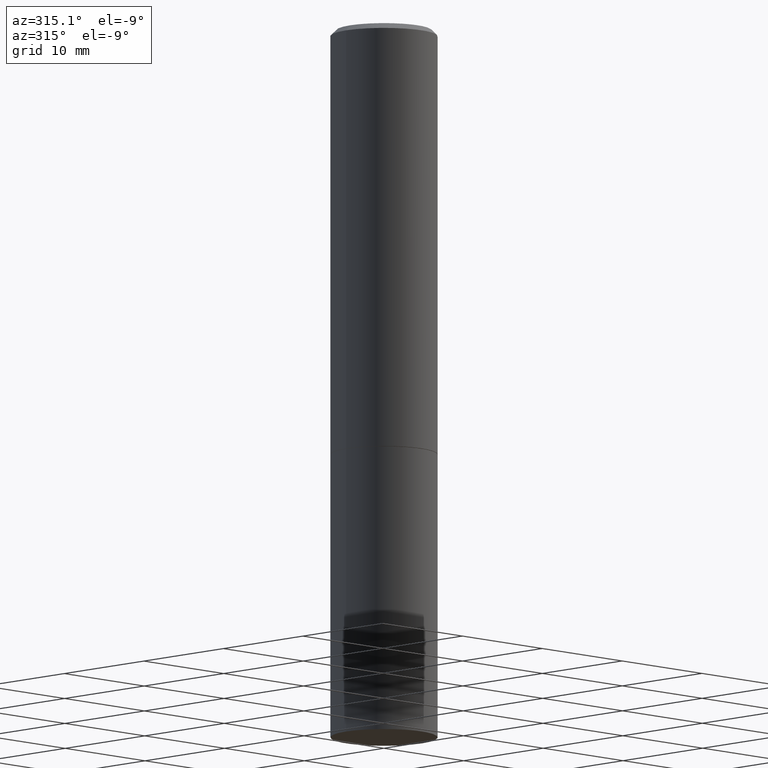
[diagram: clean part render]
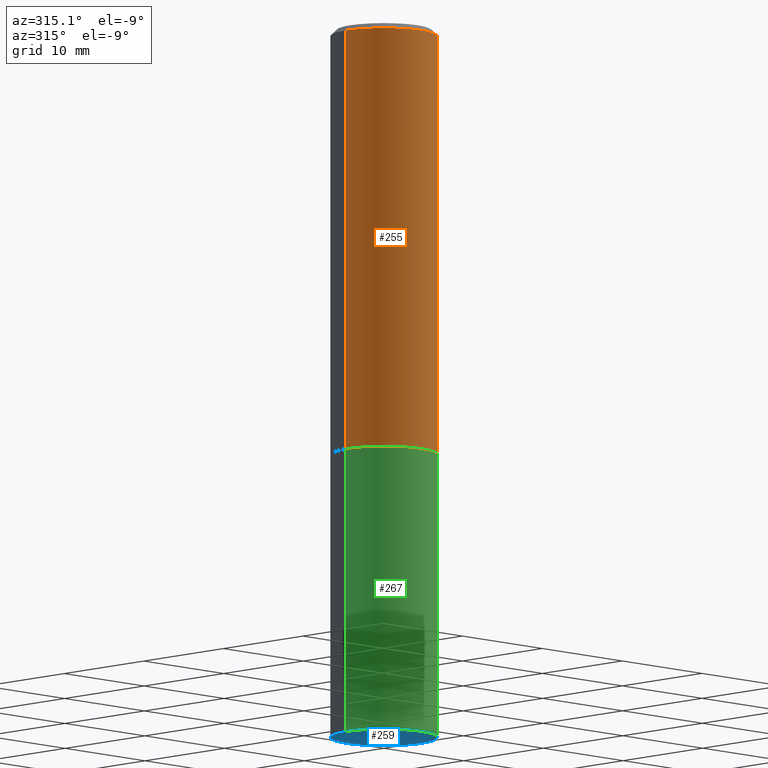
[diagram: same view with three faces highlighted in distinct colors, each labeled with its STEP entity id]
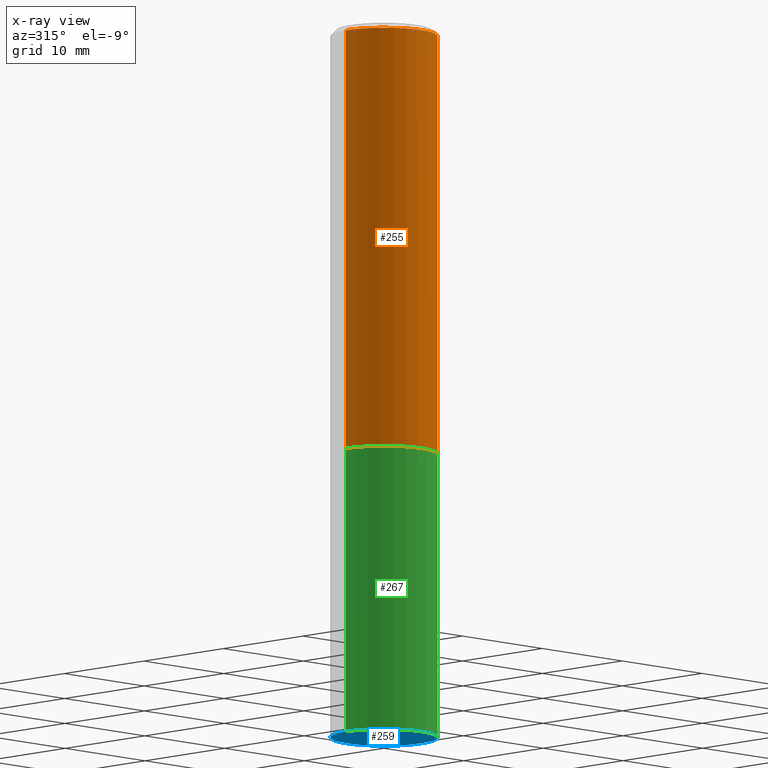
[diagram: x-ray of the same camera — body ghosted, the three highlighted faces saturated]
A machine part, auxiliary view with three faces highlighted in distinct colors.
The next image is the same camera in x-ray (body ghosted, the three faces saturated) — at least one of them is partly hidden behind the body in this view.
Their STEP definitions:

[orange] entity #255 — the highlighted cylindrical surface (partial cylindrical patch) has radius 4.7625 mm, axis along (-0, 0, 1).
#2 = ORIENTED_EDGE ( 'NONE', *, *, #295, .F. ) ;
#11 = CARTESIAN_POINT ( 'NONE',  ( -0.1874999999999999445, 1.332267629550187454E-15, -9.223003294227945188E-30 ) ) ;
#12 = ORIENTED_EDGE ( 'NONE', *, *, #79, .T. ) ;
#16 = CARTESIAN_POINT ( 'NONE',  ( -0.1874999999999998890, 1.239475875289310921E-15, -0.02000000000000004205 ) ) ;
#27 = DIRECTION ( 'NONE',  ( -2.445468806185136597E-29, 3.491481338843145583E-15, 1.000000000000000000 ) ) ;
#43 = AXIS2_PLACEMENT_3D ( 'NONE', #98, #207, #329 ) ;
#48 = DIRECTION ( 'NONE',  ( 1.000000000000000000, -6.982962677686266711E-15, 4.876176775795935793E-29 ) ) ;
#54 = CARTESIAN_POINT ( 'NONE',  ( 3.665757740471519853E-29, -5.233730526925875958E-15, -1.499000000000000110 ) ) ;
#59 = CIRCLE ( 'NONE', #43, 0.1874999999999998890 ) ;
#74 = FACE_OUTER_BOUND ( 'NONE', #363, .T. ) ;
#79 = EDGE_CURVE ( 'NONE', #270, #342, #310, .T. ) ;
#96 = DIRECTION ( 'NONE',  ( -2.445468806185136877E-29, 3.491481338843145188E-15, 1.000000000000000000 ) ) ;
#98 = CARTESIAN_POINT ( 'NONE',  ( 4.890937612370283668E-31, -6.982962677686305168E-17, -0.02000000000000004205 ) ) ;
#107 = VECTOR ( 'NONE', #96, 39.37007874015748143 ) ;
#131 = EDGE_CURVE ( 'NONE', #188, #342, #59, .T. ) ;
#143 = LINE ( 'NONE', #11, #107 ) ;
#150 = CARTESIAN_POINT ( 'NONE',  ( 0.1874999999999999445, -1.309305502066174614E-15, 9.142831454617376809E-30 ) ) ;
#163 = CARTESIAN_POINT ( 'NONE',  ( 0.1875000000000000278, -6.543036028992050967E-15, -1.499000000000000110 ) ) ;
#173 = CARTESIAN_POINT ( 'NONE',  ( 0.000000000000000000, 0.000000000000000000, 0.000000000000000000 ) ) ;
#181 = AXIS2_PLACEMENT_3D ( 'NONE', #54, #192, #341 ) ;
#186 = DIRECTION ( 'NONE',  ( -2.445468806185136877E-29, 3.491481338843145188E-15, 1.000000000000000000 ) ) ;
#188 = VERTEX_POINT ( 'NONE', #16 ) ;
#192 = DIRECTION ( 'NONE',  ( -2.445468806185136597E-29, 3.491481338843145583E-15, 1.000000000000000000 ) ) ;
#207 = DIRECTION ( 'NONE',  ( -2.445468806185136597E-29, 3.491481338843145583E-15, 1.000000000000000000 ) ) ;
#216 = ORIENTED_EDGE ( 'NONE', *, *, #131, .F. ) ;
#226 = ORIENTED_EDGE ( 'NONE', *, *, #328, .T. ) ;
#244 = VERTEX_POINT ( 'NONE', #245 ) ;
#245 = CARTESIAN_POINT ( 'NONE',  ( -0.1875000000000000278, -1.319512447301180005E-15, -1.499000000000000110 ) ) ;
#255 = ADVANCED_FACE ( 'NONE', ( #74 ), #286, .T. ) ;
#258 = CARTESIAN_POINT ( 'NONE',  ( 0.1874999999999998890, -1.356173001359024480E-15, -0.02000000000000004205 ) ) ;
#270 = VERTEX_POINT ( 'NONE', #163 ) ;
#272 = CIRCLE ( 'NONE', #181, 0.1875000000000000278 ) ;
#286 = CYLINDRICAL_SURFACE ( 'NONE', #360, 0.1874999999999999445 ) ;
#294 = VECTOR ( 'NONE', #186, 39.37007874015748143 ) ;
#295 = EDGE_CURVE ( 'NONE', #244, #188, #143, .T. ) ;
#310 = LINE ( 'NONE', #150, #294 ) ;
#328 = EDGE_CURVE ( 'NONE', #244, #270, #272, .T. ) ;
#329 = DIRECTION ( 'NONE',  ( 1.000000000000000000, -6.982962677686265922E-15, 0.000000000000000000 ) ) ;
#341 = DIRECTION ( 'NONE',  ( 1.000000000000000000, -6.982962677686266711E-15, 0.000000000000000000 ) ) ;
#342 = VERTEX_POINT ( 'NONE', #258 ) ;
#360 = AXIS2_PLACEMENT_3D ( 'NONE', #173, #27, #48 ) ;
#363 = EDGE_LOOP ( 'NONE', ( #2, #226, #12, #216 ) ) ;

[blue] entity #259 — the highlighted planar face has unit normal (0, -0, -1).
#1 = DIRECTION ( 'NONE',  ( -2.445468806185136597E-29, 3.491481338843145583E-15, 1.000000000000000000 ) ) ;
#3 = EDGE_LOOP ( 'NONE', ( #196, #287 ) ) ;
#15 = CARTESIAN_POINT ( 'NONE',  ( 6.113672015462842613E-29, -8.728703347107864943E-15, -2.500000000000000000 ) ) ;
#18 = DIRECTION ( 'NONE',  ( 2.438088387897960049E-29, -3.491481338843145188E-15, -1.000000000000000000 ) ) ;
#21 = PLANE ( 'NONE',  #320 ) ;
#57 = VERTEX_POINT ( 'NONE', #326 ) ;
#70 = DIRECTION ( 'NONE',  ( 1.000000000000000000, -6.982962677686266711E-15, 0.000000000000000000 ) ) ;
#72 = EDGE_CURVE ( 'NONE', #224, #57, #225, .T. ) ;
#85 = DIRECTION ( 'NONE',  ( 1.000000000000000000, -6.982962677686266711E-15, 0.000000000000000000 ) ) ;
#99 = CARTESIAN_POINT ( 'NONE',  ( 6.113672015462842613E-29, -8.728703347107864943E-15, -2.500000000000000000 ) ) ;
#123 = AXIS2_PLACEMENT_3D ( 'NONE', #99, #1, #85 ) ;
#142 = FACE_OUTER_BOUND ( 'NONE', #3, .T. ) ;
#164 = DIRECTION ( 'NONE',  ( -2.445468806185136597E-29, 3.491481338843145583E-15, 1.000000000000000000 ) ) ;
#196 = ORIENTED_EDGE ( 'NONE', *, *, #235, .F. ) ;
#224 = VERTEX_POINT ( 'NONE', #321 ) ;
#225 = CIRCLE ( 'NONE', #123, 0.1875000000000000278 ) ;
#235 = EDGE_CURVE ( 'NONE', #57, #224, #314, .T. ) ;
#238 = DIRECTION ( 'NONE',  ( -1.000000000000000000, 6.982962677686265922E-15, -4.876176775795935793E-29 ) ) ;
#253 = CARTESIAN_POINT ( 'NONE',  ( 1.309305502066236145E-15, 0.1874999999999912847, -2.500000000000000444 ) ) ;
#259 = ADVANCED_FACE ( 'NONE', ( #142 ), #21, .T. ) ;
#262 = AXIS2_PLACEMENT_3D ( 'NONE', #15, #164, #70 ) ;
#287 = ORIENTED_EDGE ( 'NONE', *, *, #72, .F. ) ;
#314 = CIRCLE ( 'NONE', #262, 0.1875000000000000278 ) ;
#320 = AXIS2_PLACEMENT_3D ( 'NONE', #253, #18, #238 ) ;
#321 = CARTESIAN_POINT ( 'NONE',  ( -0.1875000000000000278, -5.650695048136103317E-15, -2.500000000000000000 ) ) ;
#326 = CARTESIAN_POINT ( 'NONE',  ( 0.1875000000000000278, -1.003800884917403995E-14, -2.500000000000000000 ) ) ;

[green] entity #267 — the highlighted cylindrical surface (partial cylindrical patch) has radius 4.7625 mm, axis along (-0, 0, 1).
#1 = DIRECTION ( 'NONE',  ( -2.445468806185136597E-29, 3.491481338843145583E-15, 1.000000000000000000 ) ) ;
#20 = EDGE_CURVE ( 'NONE', #224, #53, #167, .T. ) ;
#30 = DIRECTION ( 'NONE',  ( -2.445468806185136877E-29, 3.491481338843145188E-15, 1.000000000000000000 ) ) ;
#40 = CARTESIAN_POINT ( 'NONE',  ( -0.1875000000000000278, -5.650695048136103317E-15, -1.500000000000000222 ) ) ;
#51 = CARTESIAN_POINT ( 'NONE',  ( 0.000000000000000000, 0.000000000000000000, 0.000000000000000000 ) ) ;
#53 = VERTEX_POINT ( 'NONE', #40 ) ;
#57 = VERTEX_POINT ( 'NONE', #326 ) ;
#67 = CARTESIAN_POINT ( 'NONE',  ( 3.668203209277704895E-29, -5.237222008264718177E-15, -1.500000000000000222 ) ) ;
#72 = EDGE_CURVE ( 'NONE', #224, #57, #225, .T. ) ;
#73 = EDGE_LOOP ( 'NONE', ( #194, #220, #232, #183 ) ) ;
#80 = FACE_OUTER_BOUND ( 'NONE', #73, .T. ) ;
#85 = DIRECTION ( 'NONE',  ( 1.000000000000000000, -6.982962677686266711E-15, 0.000000000000000000 ) ) ;
#99 = CARTESIAN_POINT ( 'NONE',  ( 6.113672015462842613E-29, -8.728703347107864943E-15, -2.500000000000000000 ) ) ;
#109 = DIRECTION ( 'NONE',  ( 1.000000000000000000, -6.982962677686265922E-15, 4.876176775795935793E-29 ) ) ;
#123 = AXIS2_PLACEMENT_3D ( 'NONE', #99, #1, #85 ) ;
#147 = VERTEX_POINT ( 'NONE', #228 ) ;
#153 = AXIS2_PLACEMENT_3D ( 'NONE', #67, #234, #201 ) ;
#159 = VECTOR ( 'NONE', #269, 39.37007874015748143 ) ;
#167 = LINE ( 'NONE', #209, #159 ) ;
#175 = CYLINDRICAL_SURFACE ( 'NONE', #324, 0.1875000000000000278 ) ;
#183 = ORIENTED_EDGE ( 'NONE', *, *, #212, .F. ) ;
#194 = ORIENTED_EDGE ( 'NONE', *, *, #20, .F. ) ;
#201 = DIRECTION ( 'NONE',  ( 1.000000000000000000, -6.982962677686266711E-15, 0.000000000000000000 ) ) ;
#209 = CARTESIAN_POINT ( 'NONE',  ( -0.1875000000000000278, 1.332267629550188046E-15, -9.223003294227947991E-30 ) ) ;
#212 = EDGE_CURVE ( 'NONE', #53, #147, #330, .T. ) ;
#220 = ORIENTED_EDGE ( 'NONE', *, *, #72, .T. ) ;
#224 = VERTEX_POINT ( 'NONE', #321 ) ;
#225 = CIRCLE ( 'NONE', #123, 0.1875000000000000278 ) ;
#228 = CARTESIAN_POINT ( 'NONE',  ( 0.1875000000000000278, -6.546527510330893974E-15, -1.500000000000000222 ) ) ;
#232 = ORIENTED_EDGE ( 'NONE', *, *, #322, .T. ) ;
#234 = DIRECTION ( 'NONE',  ( -2.445468806185136597E-29, 3.491481338843145583E-15, 1.000000000000000000 ) ) ;
#243 = DIRECTION ( 'NONE',  ( -2.445468806185136597E-29, 3.491481338843145583E-15, 1.000000000000000000 ) ) ;
#263 = LINE ( 'NONE', #289, #340 ) ;
#267 = ADVANCED_FACE ( 'NONE', ( #80 ), #175, .T. ) ;
#269 = DIRECTION ( 'NONE',  ( -2.445468806185136877E-29, 3.491481338843145188E-15, 1.000000000000000000 ) ) ;
#289 = CARTESIAN_POINT ( 'NONE',  ( 0.1875000000000000278, -1.309305502066175008E-15, 9.142831454617381013E-30 ) ) ;
#321 = CARTESIAN_POINT ( 'NONE',  ( -0.1875000000000000278, -5.650695048136103317E-15, -2.500000000000000000 ) ) ;
#322 = EDGE_CURVE ( 'NONE', #57, #147, #263, .T. ) ;
#324 = AXIS2_PLACEMENT_3D ( 'NONE', #51, #243, #109 ) ;
#326 = CARTESIAN_POINT ( 'NONE',  ( 0.1875000000000000278, -1.003800884917403995E-14, -2.500000000000000000 ) ) ;
#330 = CIRCLE ( 'NONE', #153, 0.1875000000000000278 ) ;
#340 = VECTOR ( 'NONE', #30, 39.37007874015748143 ) ;